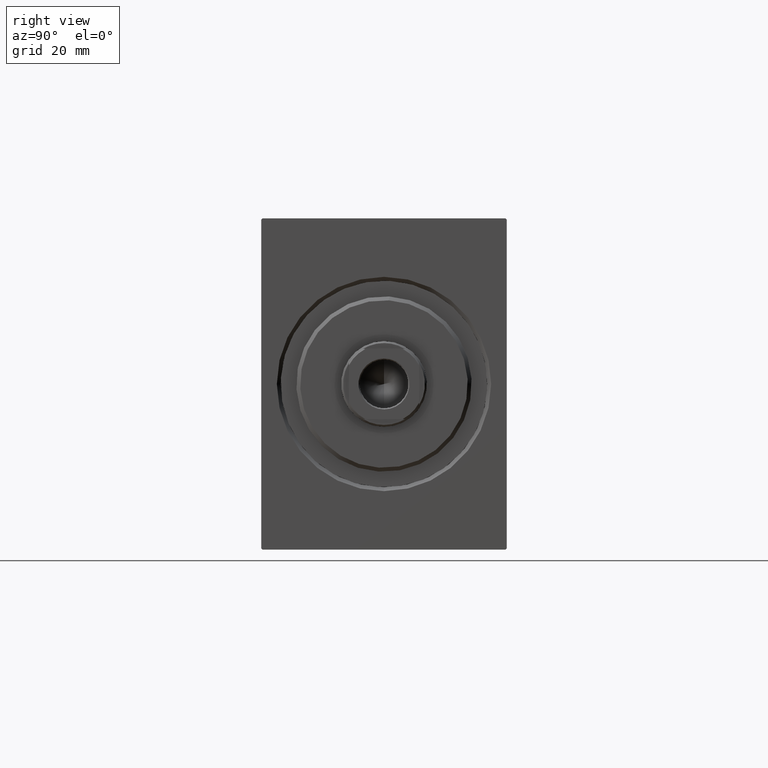
[diagram: clean part render]
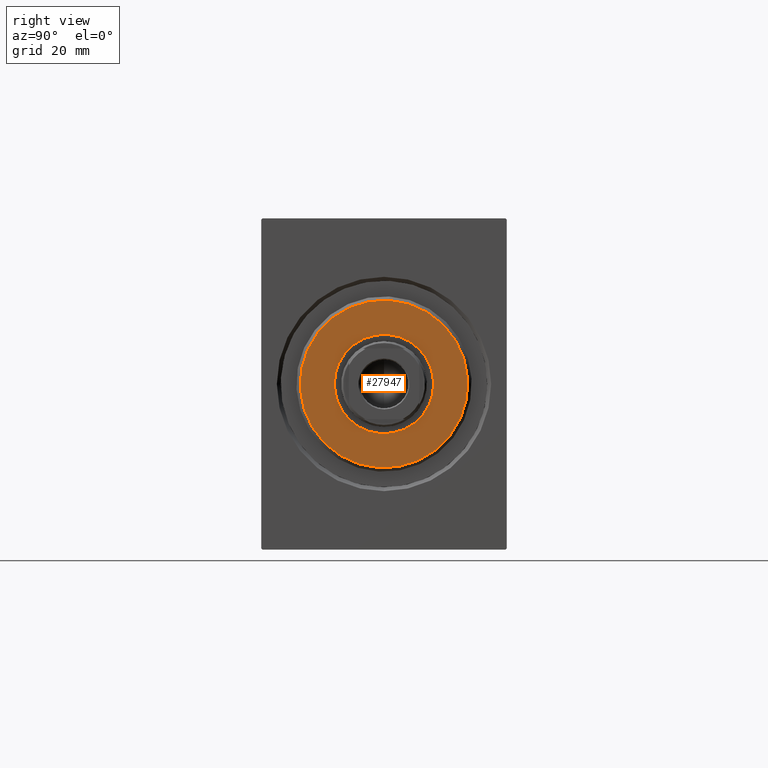
[diagram: same view with one face highlighted and labeled with its STEP entity id]
A machine part, right view. The second image highlights one B-rep face of the part: STEP entity #27947.
In plain terms, the highlighted planar face has unit normal (1, -0, -0).
Its self-contained STEP definition (entity closure, byte-faithful):
#497 = ORIENTED_EDGE ( 'NONE', *, *, #21802, .T. ) ;
#1261 = EDGE_LOOP ( 'NONE', ( #39992, #30022 ) ) ;
#3197 = PLANE ( 'NONE',  #27015 ) ;
#3200 = DIRECTION ( 'NONE',  ( 0.000000000000000000, 0.000000000000000000, -1.000000000000000000 ) ) ;
#4335 = VERTEX_POINT ( 'NONE', #24128 ) ;
#5996 = DIRECTION ( 'NONE',  ( 0.000000000000000000, 0.000000000000000000, -1.000000000000000000 ) ) ;
#6365 = DIRECTION ( 'NONE',  ( 1.000000000000000000, -0.000000000000000000, 0.000000000000000000 ) ) ;
#7076 = VERTEX_POINT ( 'NONE', #16882 ) ;
#7180 = DIRECTION ( 'NONE',  ( 1.000000000000000000, -0.000000000000000000, 0.000000000000000000 ) ) ;
#7915 = CIRCLE ( 'NONE', #37684, 12.75000000000000000 ) ;
#8117 = DIRECTION ( 'NONE',  ( 1.000000000000000000, 0.000000000000000000, 0.000000000000000000 ) ) ;
#8624 = CIRCLE ( 'NONE', #31297, 12.75000000000000000 ) ;
#15336 = CARTESIAN_POINT ( 'NONE',  ( 3.000000000000000000, 0.000000000000000000, -12.75000000000000000 ) ) ;
#15372 = CIRCLE ( 'NONE', #40856, 21.50000000000001066 ) ;
#15425 = DIRECTION ( 'NONE',  ( 0.000000000000000000, 0.000000000000000000, -1.000000000000000000 ) ) ;
#15946 = CIRCLE ( 'NONE', #29433, 21.50000000000001066 ) ;
#15980 = CARTESIAN_POINT ( 'NONE',  ( 3.000000000000000000, 0.000000000000000000, 0.000000000000000000 ) ) ;
#16827 = CARTESIAN_POINT ( 'NONE',  ( 3.000000000000000000, 1.561424668912875111E-15, 12.75000000000000000 ) ) ;
#16882 = CARTESIAN_POINT ( 'NONE',  ( 3.000000000000000000, 2.694222958124177993E-15, -21.50000000000001066 ) ) ;
#17272 = EDGE_CURVE ( 'NONE', #4335, #7076, #15946, .T. ) ;
#17822 = VERTEX_POINT ( 'NONE', #16827 ) ;
#21802 = EDGE_CURVE ( 'NONE', #7076, #4335, #15372, .T. ) ;
#22850 = DIRECTION ( 'NONE',  ( 1.000000000000000000, 0.000000000000000000, 0.000000000000000000 ) ) ;
#23395 = DIRECTION ( 'NONE',  ( 1.000000000000000000, -0.000000000000000000, 0.000000000000000000 ) ) ;
#23668 = CARTESIAN_POINT ( 'NONE',  ( 3.000000000000000000, 0.000000000000000000, 0.000000000000000000 ) ) ;
#24128 = CARTESIAN_POINT ( 'NONE',  ( 3.000000000000000000, 0.000000000000000000, 21.50000000000001066 ) ) ;
#25630 = CARTESIAN_POINT ( 'NONE',  ( 3.000000000000000000, 0.000000000000000000, 0.000000000000000000 ) ) ;
#26942 = FACE_OUTER_BOUND ( 'NONE', #33377, .T. ) ;
#27015 = AXIS2_PLACEMENT_3D ( 'NONE', #40674, #7180, #37585 ) ;
#27816 = FACE_BOUND ( 'NONE', #1261, .T. ) ;
#27947 = ADVANCED_FACE ( 'NONE', ( #26942, #27816 ), #3197, .T. ) ;
#29066 = EDGE_CURVE ( 'NONE', #17822, #33661, #8624, .T. ) ;
#29433 = AXIS2_PLACEMENT_3D ( 'NONE', #33590, #23395, #3200 ) ;
#29670 = EDGE_CURVE ( 'NONE', #33661, #17822, #7915, .T. ) ;
#30022 = ORIENTED_EDGE ( 'NONE', *, *, #29066, .F. ) ;
#30526 = DIRECTION ( 'NONE',  ( 0.000000000000000000, 0.000000000000000000, -1.000000000000000000 ) ) ;
#31297 = AXIS2_PLACEMENT_3D ( 'NONE', #25630, #8117, #15425 ) ;
#33377 = EDGE_LOOP ( 'NONE', ( #39878, #497 ) ) ;
#33590 = CARTESIAN_POINT ( 'NONE',  ( 3.000000000000000000, 0.000000000000000000, 0.000000000000000000 ) ) ;
#33661 = VERTEX_POINT ( 'NONE', #15336 ) ;
#37585 = DIRECTION ( 'NONE',  ( 0.000000000000000000, 0.000000000000000000, -1.000000000000000000 ) ) ;
#37684 = AXIS2_PLACEMENT_3D ( 'NONE', #15980, #22850, #5996 ) ;
#39878 = ORIENTED_EDGE ( 'NONE', *, *, #17272, .T. ) ;
#39992 = ORIENTED_EDGE ( 'NONE', *, *, #29670, .F. ) ;
#40674 = CARTESIAN_POINT ( 'NONE',  ( 3.000000000000000000, 0.000000000000000000, 0.000000000000000000 ) ) ;
#40856 = AXIS2_PLACEMENT_3D ( 'NONE', #23668, #6365, #30526 ) ;